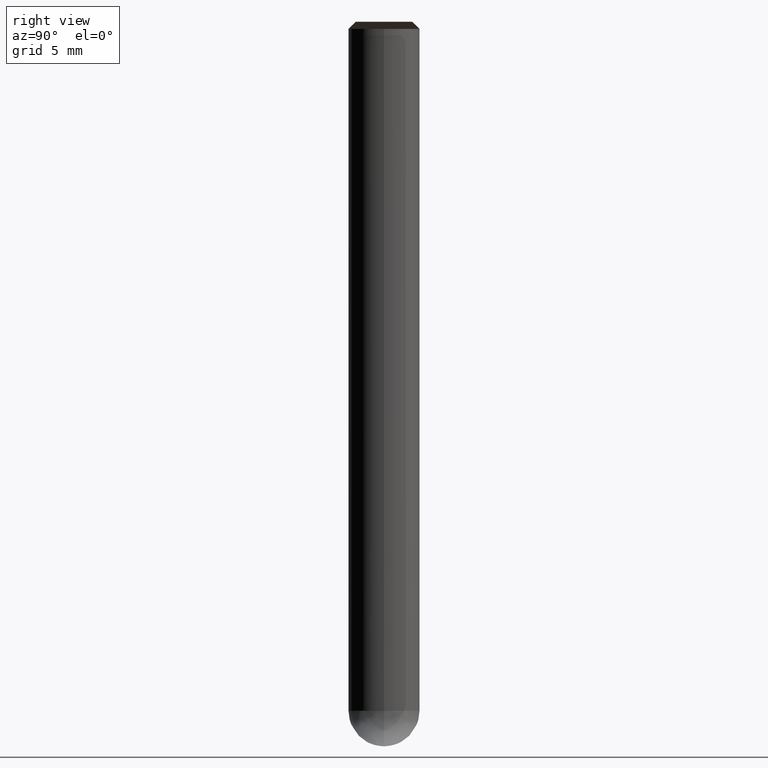
[diagram: clean part render]
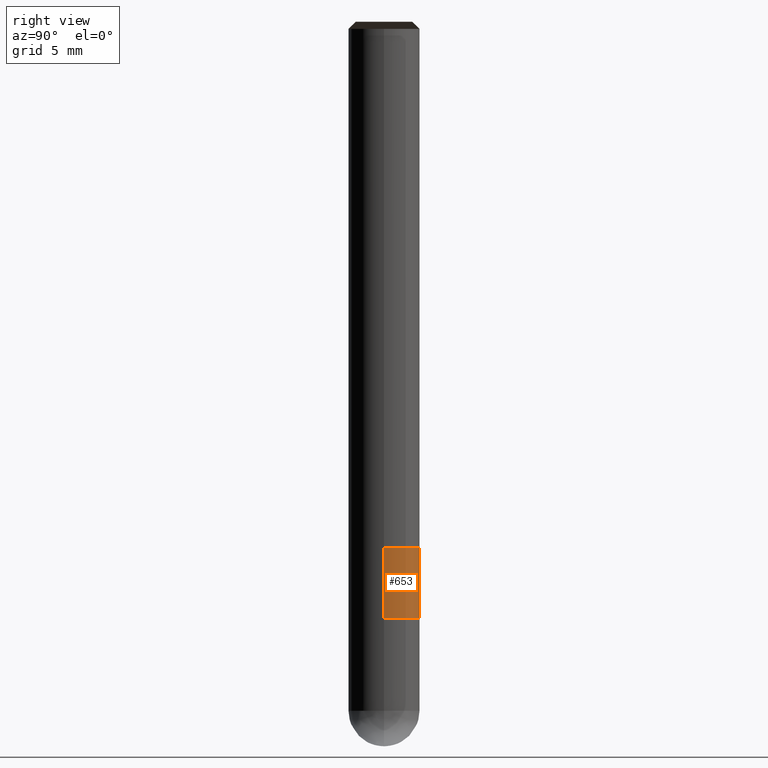
[diagram: same view with one face highlighted and labeled with its STEP entity id]
A machine part, right view. The second image highlights one B-rep face of the part: STEP entity #653.
In plain terms, the highlighted face is a freeform B-spline surface patch.
Its self-contained STEP definition (entity closure, byte-faithful):
#464=CARTESIAN_POINT('',(2.5,0.0,-5.0));
#465=CARTESIAN_POINT('',(2.5,2.5,-5.0));
#466=CARTESIAN_POINT('',(0.0,2.5,-5.0));
#467=CARTESIAN_POINT('',(-2.5,2.5,-5.0));
#468=CARTESIAN_POINT('',(-2.5,0.0,-5.0));
#479=CARTESIAN_POINT('',(2.5,0.0,0.0));
#480=CARTESIAN_POINT('',(2.5,2.5,0.0));
#481=CARTESIAN_POINT('',(0.0,2.5,0.0));
#482=CARTESIAN_POINT('',(-2.5,2.5,0.0));
#483=CARTESIAN_POINT('',(-2.5,0.0,0.0));
#634=(
BOUNDED_SURFACE()
B_SPLINE_SURFACE(1,2,(
(#464,#465,#466,#467,#468),
(#479,#480,#481,#482,#483)
), .UNSPECIFIED.,.F.,.F.,.F.)
B_SPLINE_SURFACE_WITH_KNOTS((2,2),(3,2,3),(
0.0,1.0),(
0.0,0.5,1.0), .UNSPECIFIED.)
GEOMETRIC_REPRESENTATION_ITEM()
RATIONAL_B_SPLINE_SURFACE(((1.0,0.707106781187,1.0,0.707106781187,1.0),
(1.0,0.707106781187,1.0,0.707106781187,1.0)
))
REPRESENTATION_ITEM('')
SURFACE()
);
#635=(
BOUNDED_CURVE()
B_SPLINE_CURVE(2,(#468,#467,#466,#465,#464),.UNSPECIFIED.,.F.,.F.)
B_SPLINE_CURVE_WITH_KNOTS((3,2,3),
(0.0,0.5,1.0),.UNSPECIFIED.)
CURVE()
GEOMETRIC_REPRESENTATION_ITEM()
RATIONAL_B_SPLINE_CURVE((1.0,0.707106781187,1.0,0.707106781187,1.0))
REPRESENTATION_ITEM('')
);
#636=(
BOUNDED_CURVE()
B_SPLINE_CURVE(1,(#464,#479),.UNSPECIFIED.,.F.,.F.)
B_SPLINE_CURVE_WITH_KNOTS((2,2),
(0.0,1.0),.UNSPECIFIED.)
CURVE()
GEOMETRIC_REPRESENTATION_ITEM()
RATIONAL_B_SPLINE_CURVE((1.0,1.0))
REPRESENTATION_ITEM('')
);
#637=(
BOUNDED_CURVE()
B_SPLINE_CURVE(2,(#479,#480,#481,#482,#483),.UNSPECIFIED.,.F.,.F.)
B_SPLINE_CURVE_WITH_KNOTS((3,2,3),
(0.0,0.5,1.0),.UNSPECIFIED.)
CURVE()
GEOMETRIC_REPRESENTATION_ITEM()
RATIONAL_B_SPLINE_CURVE((1.0,0.707106781187,1.0,0.707106781187,1.0))
REPRESENTATION_ITEM('')
);
#638=(
BOUNDED_CURVE()
B_SPLINE_CURVE(1,(#483,#468),.UNSPECIFIED.,.F.,.F.)
B_SPLINE_CURVE_WITH_KNOTS((2,2),
(0.0,1.0),.UNSPECIFIED.)
CURVE()
GEOMETRIC_REPRESENTATION_ITEM()
RATIONAL_B_SPLINE_CURVE((1.0,1.0))
REPRESENTATION_ITEM('')
);
#639=VERTEX_POINT('',#464);
#640=VERTEX_POINT('',#468);
#641=VERTEX_POINT('',#479);
#642=VERTEX_POINT('',#483);
#643=EDGE_CURVE('',#640,#639,#635,.T.);
#644=EDGE_CURVE('',#639,#641,#636,.T.);
#645=EDGE_CURVE('',#641,#642,#637,.T.);
#646=EDGE_CURVE('',#642,#640,#638,.T.);
#647=ORIENTED_EDGE('',*,*,#643,.T.);
#648=ORIENTED_EDGE('',*,*,#644,.T.);
#649=ORIENTED_EDGE('',*,*,#645,.T.);
#650=ORIENTED_EDGE('',*,*,#646,.T.);
#651=EDGE_LOOP('',(#647,#648,#649,#650));
#652=FACE_OUTER_BOUND('',#651,.T.);
#653=ADVANCED_FACE('',(#652),#634,.T.);